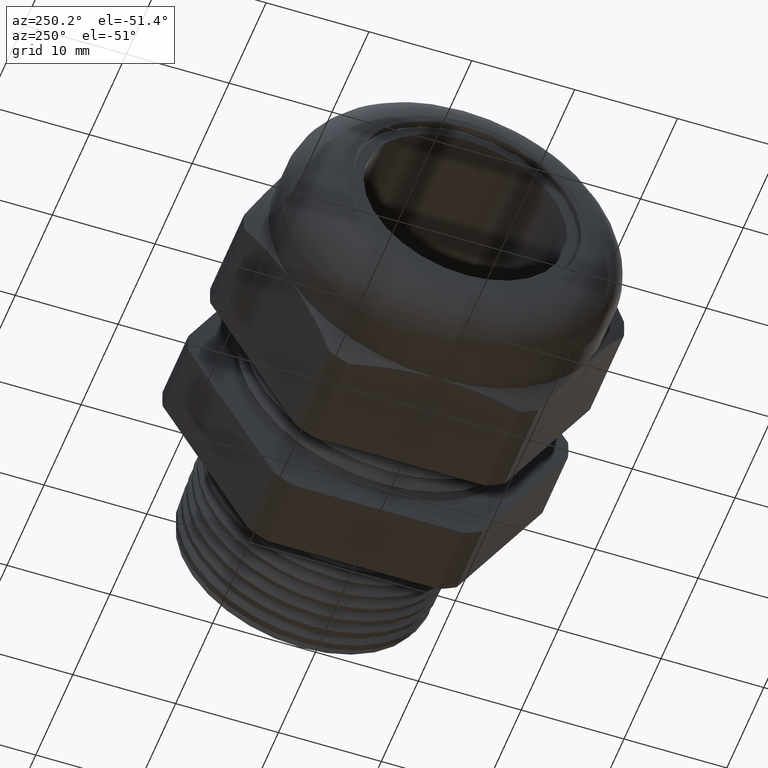
[diagram: clean part render]
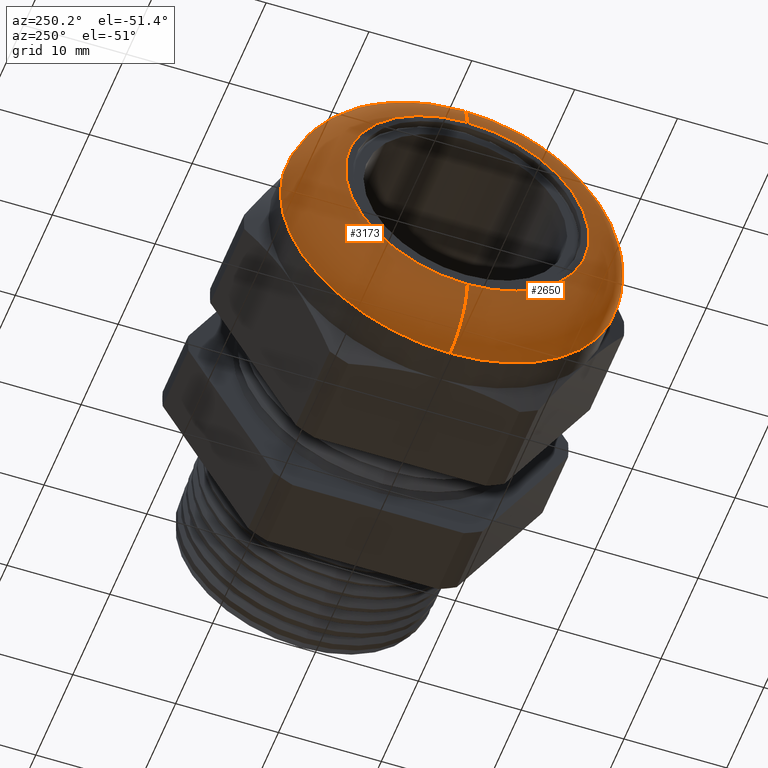
[diagram: same view with one multi-face feature highlighted, each face labeled with its STEP entity id]
A machine part, auxiliary view. The highlighted faces form ONE feature: a constant-radius fillet chain: 2 tangent blend faces with common blend radius 4.6482 mm. The faces share edges in the B-rep.
Their STEP definitions:
[1] entity #3173 (Torus):
#945 = DIRECTION ( 'NONE',  ( 0.0000000000000000000, 0.0000000000000000000, -1.000000000000000000 ) ) ;
#946 = DIRECTION ( 'NONE',  ( -1.000000000000000000, 0.0000000000000000000, 0.0000000000000000000 ) ) ;
#947 = CARTESIAN_POINT ( 'NONE',  ( -1.220000000000000200, 0.0000000000000000000, 0.0000000000000000000 ) ) ;
#948 = AXIS2_PLACEMENT_3D ( 'NONE', #947, #946, #945 ) ;
#949 = CIRCLE ( 'NONE', #948, 0.4669999999999996900 ) ;
#951 = DIRECTION ( 'NONE',  ( 0.0000000000000000000, 1.224646799147353000E-016, 1.000000000000000000 ) ) ;
#952 = DIRECTION ( 'NONE',  ( 0.0000000000000000000, 1.000000000000000000, -1.224646799147353200E-016 ) ) ;
#953 = CARTESIAN_POINT ( 'NONE',  ( -1.036999999999999900, 5.719100552018135400E-017, 0.4669999999999996900 ) ) ;
#954 = AXIS2_PLACEMENT_3D ( 'NONE', #953, #952, #951 ) ;
#955 = CIRCLE ( 'NONE', #954, 0.1830000000000000800 ) ;
#961 = CARTESIAN_POINT ( 'NONE',  ( -1.036999999999999900, 0.0000000000000000000, 0.6499999999999998000 ) ) ;
#1000 = CARTESIAN_POINT ( 'NONE',  ( -1.036999999999999900, 7.960204194457793000E-017, -0.6499999999999998000 ) ) ;
#1644 = DIRECTION ( 'NONE',  ( 0.0000000000000000000, 0.0000000000000000000, -1.000000000000000000 ) ) ;
#1645 = DIRECTION ( 'NONE',  ( 1.000000000000000000, 0.0000000000000000000, 0.0000000000000000000 ) ) ;
#1646 = AXIS2_PLACEMENT_3D ( 'NONE', #1648, #1645, #1644 ) ;
#1647 = TOROIDAL_SURFACE ( 'NONE', #1646, 0.4669999999999996900, 0.1830000000000000800 ) ;
#1648 = CARTESIAN_POINT ( 'NONE',  ( -1.036999999999999900, 0.0000000000000000000, 0.0000000000000000000 ) ) ;
#1649 = FACE_OUTER_BOUND ( 'NONE', #3591, .T. ) ;
#2035 = DIRECTION ( 'NONE',  ( 0.0000000000000000000, 0.0000000000000000000, -1.000000000000000000 ) ) ;
#2036 = DIRECTION ( 'NONE',  ( 0.0000000000000000000, -1.000000000000000000, 0.0000000000000000000 ) ) ;
#2037 = CARTESIAN_POINT ( 'NONE',  ( -1.036999999999999900, 0.0000000000000000000, -0.4669999999999996900 ) ) ;
#2038 = AXIS2_PLACEMENT_3D ( 'NONE', #2037, #2036, #2035 ) ;
#2043 = CIRCLE ( 'NONE', #2038, 0.1830000000000000800 ) ;
#2047 = CARTESIAN_POINT ( 'NONE',  ( -1.220000000000000200, 6.839652373237964200E-017, 0.4669999999999996900 ) ) ;
#2120 = DIRECTION ( 'NONE',  ( 0.0000000000000000000, 0.0000000000000000000, -1.000000000000000000 ) ) ;
#2121 = DIRECTION ( 'NONE',  ( 1.000000000000000000, 0.0000000000000000000, 0.0000000000000000000 ) ) ;
#2122 = CARTESIAN_POINT ( 'NONE',  ( -1.036999999999999900, 0.0000000000000000000, 0.0000000000000000000 ) ) ;
#2123 = AXIS2_PLACEMENT_3D ( 'NONE', #2122, #2121, #2120 ) ;
#2124 = CIRCLE ( 'NONE', #2123, 0.6499999999999998000 ) ;
#2218 = CARTESIAN_POINT ( 'NONE',  ( -1.220000000000000200, 0.0000000000000000000, -0.4669999999999996900 ) ) ;
#2801 = ORIENTED_EDGE ( 'NONE', *, *, #2807, .T. ) ;
#2802 = VERTEX_POINT ( 'NONE', #961 ) ;
#2807 = EDGE_CURVE ( 'NONE', #3628, #2802, #955, .T. ) ;
#2809 = EDGE_CURVE ( 'NONE', #3628, #3708, #949, .T. ) ;
#2811 = VERTEX_POINT ( 'NONE', #1000 ) ;
#2812 = ORIENTED_EDGE ( 'NONE', *, *, #3632, .F. ) ;
#3153 = ORIENTED_EDGE ( 'NONE', *, *, #2809, .F. ) ;
#3173 = ADVANCED_FACE ( 'NONE', ( #1649 ), #1647, .T. ) ;
#3591 = EDGE_LOOP ( 'NONE', ( #3153, #2801, #3648, #2812 ) ) ;
#3628 = VERTEX_POINT ( 'NONE', #2047 ) ;
#3632 = EDGE_CURVE ( 'NONE', #3708, #2811, #2043, .T. ) ;
#3648 = ORIENTED_EDGE ( 'NONE', *, *, #3655, .F. ) ;
#3655 = EDGE_CURVE ( 'NONE', #2811, #2802, #2124, .T. ) ;
#3708 = VERTEX_POINT ( 'NONE', #2218 ) ;
[2] entity #2650 (Torus):
#25 = EDGE_CURVE ( 'NONE', #2802, #2811, #3211, .T. ) ;
#726 = DIRECTION ( 'NONE',  ( 0.0000000000000000000, 0.0000000000000000000, -1.000000000000000000 ) ) ;
#727 = DIRECTION ( 'NONE',  ( 1.000000000000000000, 0.0000000000000000000, 0.0000000000000000000 ) ) ;
#728 = CARTESIAN_POINT ( 'NONE',  ( -1.036999999999999900, 0.0000000000000000000, 0.0000000000000000000 ) ) ;
#729 = AXIS2_PLACEMENT_3D ( 'NONE', #728, #727, #726 ) ;
#730 = TOROIDAL_SURFACE ( 'NONE', #729, 0.4669999999999996900, 0.1830000000000000800 ) ;
#735 = FACE_OUTER_BOUND ( 'NONE', #2644, .T. ) ;
#767 = DIRECTION ( 'NONE',  ( 0.0000000000000000000, 0.0000000000000000000, -1.000000000000000000 ) ) ;
#768 = DIRECTION ( 'NONE',  ( -1.000000000000000000, 0.0000000000000000000, 0.0000000000000000000 ) ) ;
#769 = CARTESIAN_POINT ( 'NONE',  ( -1.220000000000000200, 0.0000000000000000000, 0.0000000000000000000 ) ) ;
#770 = AXIS2_PLACEMENT_3D ( 'NONE', #769, #768, #767 ) ;
#775 = CIRCLE ( 'NONE', #770, 0.4669999999999996900 ) ;
#951 = DIRECTION ( 'NONE',  ( 0.0000000000000000000, 1.224646799147353000E-016, 1.000000000000000000 ) ) ;
#952 = DIRECTION ( 'NONE',  ( 0.0000000000000000000, 1.000000000000000000, -1.224646799147353200E-016 ) ) ;
#953 = CARTESIAN_POINT ( 'NONE',  ( -1.036999999999999900, 5.719100552018135400E-017, 0.4669999999999996900 ) ) ;
#954 = AXIS2_PLACEMENT_3D ( 'NONE', #953, #952, #951 ) ;
#955 = CIRCLE ( 'NONE', #954, 0.1830000000000000800 ) ;
#961 = CARTESIAN_POINT ( 'NONE',  ( -1.036999999999999900, 0.0000000000000000000, 0.6499999999999998000 ) ) ;
#1000 = CARTESIAN_POINT ( 'NONE',  ( -1.036999999999999900, 7.960204194457793000E-017, -0.6499999999999998000 ) ) ;
#2035 = DIRECTION ( 'NONE',  ( 0.0000000000000000000, 0.0000000000000000000, -1.000000000000000000 ) ) ;
#2036 = DIRECTION ( 'NONE',  ( 0.0000000000000000000, -1.000000000000000000, 0.0000000000000000000 ) ) ;
#2037 = CARTESIAN_POINT ( 'NONE',  ( -1.036999999999999900, 0.0000000000000000000, -0.4669999999999996900 ) ) ;
#2038 = AXIS2_PLACEMENT_3D ( 'NONE', #2037, #2036, #2035 ) ;
#2043 = CIRCLE ( 'NONE', #2038, 0.1830000000000000800 ) ;
#2047 = CARTESIAN_POINT ( 'NONE',  ( -1.220000000000000200, 6.839652373237964200E-017, 0.4669999999999996900 ) ) ;
#2218 = CARTESIAN_POINT ( 'NONE',  ( -1.220000000000000200, 0.0000000000000000000, -0.4669999999999996900 ) ) ;
#2627 = ORIENTED_EDGE ( 'NONE', *, *, #2680, .F. ) ;
#2634 = ORIENTED_EDGE ( 'NONE', *, *, #2807, .F. ) ;
#2644 = EDGE_LOOP ( 'NONE', ( #2634, #2627, #2702, #2699 ) ) ;
#2650 = ADVANCED_FACE ( 'NONE', ( #735 ), #730, .T. ) ;
#2680 = EDGE_CURVE ( 'NONE', #3708, #3628, #775, .T. ) ;
#2699 = ORIENTED_EDGE ( 'NONE', *, *, #25, .F. ) ;
#2702 = ORIENTED_EDGE ( 'NONE', *, *, #3632, .T. ) ;
#2802 = VERTEX_POINT ( 'NONE', #961 ) ;
#2807 = EDGE_CURVE ( 'NONE', #3628, #2802, #955, .T. ) ;
#2811 = VERTEX_POINT ( 'NONE', #1000 ) ;
#3207 = DIRECTION ( 'NONE',  ( 0.0000000000000000000, 0.0000000000000000000, -1.000000000000000000 ) ) ;
#3208 = DIRECTION ( 'NONE',  ( 1.000000000000000000, 0.0000000000000000000, 0.0000000000000000000 ) ) ;
#3209 = CARTESIAN_POINT ( 'NONE',  ( -1.036999999999999900, 0.0000000000000000000, 0.0000000000000000000 ) ) ;
#3210 = AXIS2_PLACEMENT_3D ( 'NONE', #3209, #3208, #3207 ) ;
#3211 = CIRCLE ( 'NONE', #3210, 0.6499999999999998000 ) ;
#3628 = VERTEX_POINT ( 'NONE', #2047 ) ;
#3632 = EDGE_CURVE ( 'NONE', #3708, #2811, #2043, .T. ) ;
#3708 = VERTEX_POINT ( 'NONE', #2218 ) ;